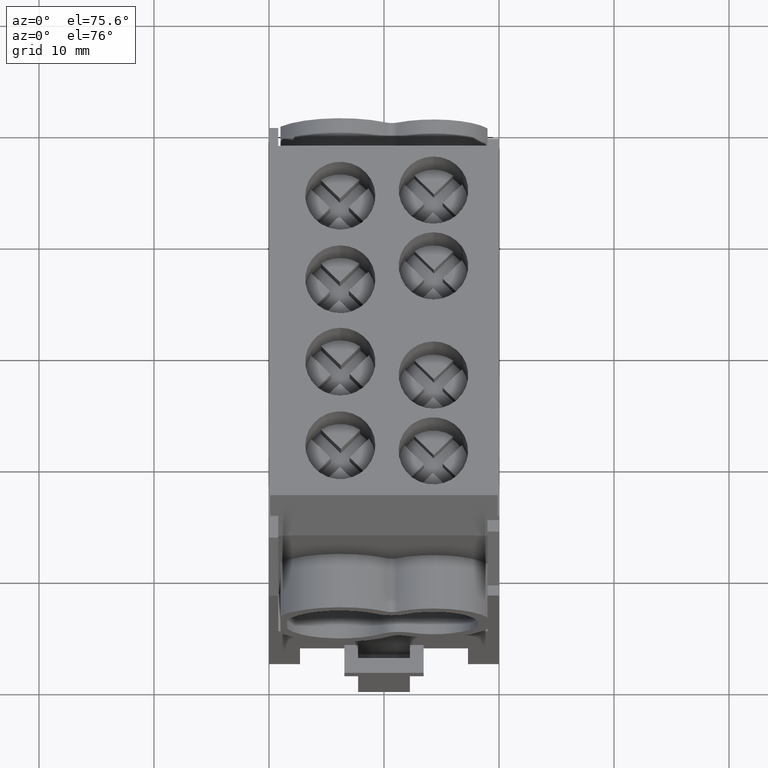
[diagram: clean part render]
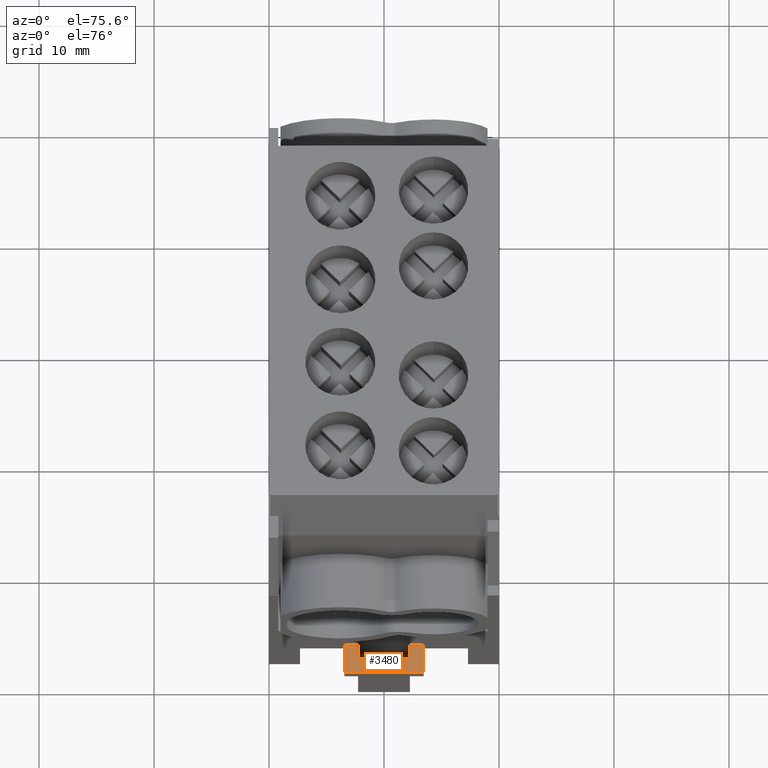
[diagram: same view with one face highlighted and labeled with its STEP entity id]
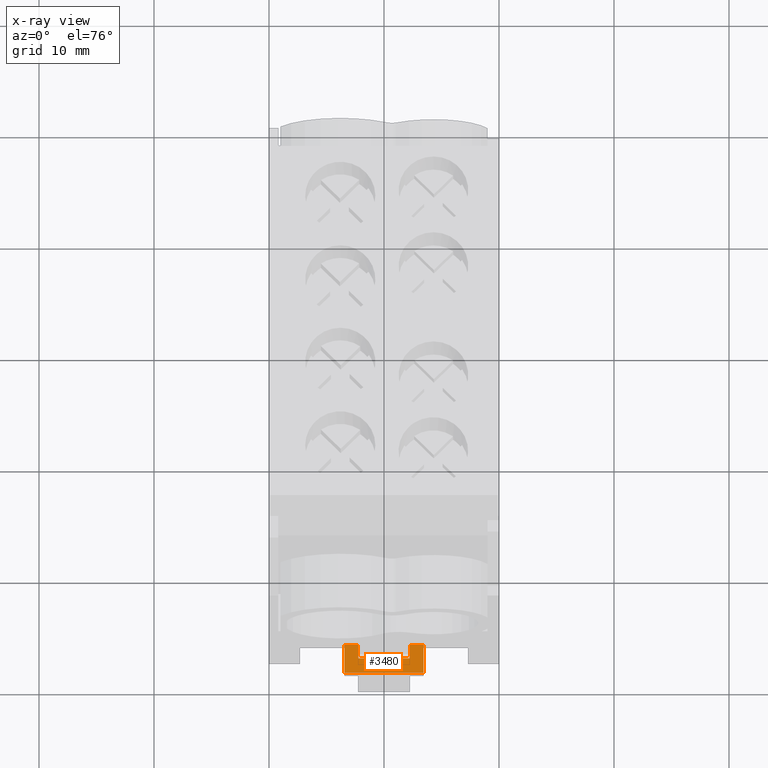
[diagram: x-ray of the same camera — body ghosted, the highlighted face saturated]
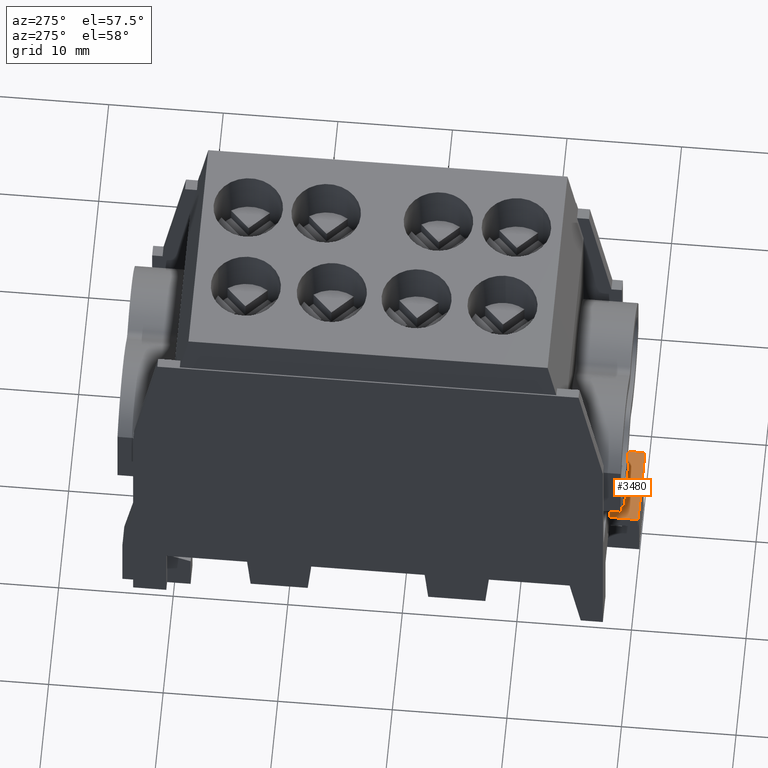
[diagram: same view with one face highlighted and labeled with its STEP entity id]
A machine part, auxiliary view. The second image highlights one B-rep face of the part: STEP entity #3480.
The next image is the same camera in x-ray: the body ghosted, the highlighted face saturated — about 0% of this face is hidden behind the body in this view.
A second angle (auxiliary view) of the same face is appended — the face is thin or edge-on in the first view.
In plain terms, the highlighted planar face has unit normal (0, 0, -1).
Its self-contained STEP definition (entity closure, byte-faithful):
#680=CARTESIAN_POINT('',(1.84999999999999,-20.5,-34.545359338705));
#690=VERTEX_POINT('',#680);
#720=CARTESIAN_POINT('',(-1.60000000000001,-20.5,-34.545359338705));
#730=DIRECTION('',(1.,-4.62223186652937E-32,5.55111512312577E-17));
#740=VECTOR('',#730,1.);
#750=LINE('',#720,#740);
#760=CARTESIAN_POINT('',(0.649999999999993,-20.5,-34.545359338705));
#770=VERTEX_POINT('',#760);
#780=EDGE_CURVE('',#770,#690,#750,.T.);
#1160=CARTESIAN_POINT('',(-3.85000000000001,-20.5,-34.545359338705));
#1170=VERTEX_POINT('',#1160);
#1200=CARTESIAN_POINT('',(-5.05000000000001,-20.5,-34.545359338705));
#1210=VERTEX_POINT('',#1200);
#1220=EDGE_CURVE('',#1210,#1170,#750,.T.);
#2950=CARTESIAN_POINT('',(-3.85000000000002,-21.5,-34.545359338705));
#2960=DIRECTION('',(5.55111512312577E-17,5.80952514931361E-16,-1.));
#2970=DIRECTION('',(-1.,2.77555756156289E-16,-5.55111512312575E-17));
#2980=AXIS2_PLACEMENT_3D('',#2950,#2960,#2970);
#2990=PLANE('',#2980);
#3000=CARTESIAN_POINT('',(-3.85000000000001,0.,-34.545359338705));
#3010=DIRECTION('',(-2.39272203583062E-20,1.,5.80952514931361E-16));
#3020=VECTOR('',#3010,1.);
#3030=LINE('',#3000,#3020);
#3040=CARTESIAN_POINT('',(-3.85000000000001,-21.7,-34.545359338705));
#3050=VERTEX_POINT('',#3040);
#3060=EDGE_CURVE('',#3050,#1170,#3030,.T.);
#3070=ORIENTED_EDGE('',*,*,#3060,.T.);
#3080=CARTESIAN_POINT('',(-1.60000000000001,-21.7,-34.545359338705));
#3090=DIRECTION('',(1.,-4.62592926927166E-18,5.55111512312577E-17));
#3100=VECTOR('',#3090,1.);
#3110=LINE('',#3080,#3100);
#3120=CARTESIAN_POINT('',(0.649999999999993,-21.7,-34.545359338705));
#3130=VERTEX_POINT('',#3120);
#3140=EDGE_CURVE('',#3050,#3130,#3110,.T.);
#3150=ORIENTED_EDGE('',*,*,#3140,.F.);
#3160=CARTESIAN_POINT('',(0.649999999999993,0.,-34.545359338705));
#3170=DIRECTION('',(2.39272203583062E-20,-1.,-5.80952514931361E-16));
#3180=VECTOR('',#3170,1.);
#3190=LINE('',#3160,#3180);
#3200=EDGE_CURVE('',#770,#3130,#3190,.T.);
#3210=ORIENTED_EDGE('',*,*,#3200,.T.);
#3220=ORIENTED_EDGE('',*,*,#780,.F.);
#3230=CARTESIAN_POINT('',(1.84999999999999,1.04809500540833E-14,
-34.545359338705));
#3240=DIRECTION('',(-1.7347234759768E-16,1.,5.80952514931361E-16));
#3250=VECTOR('',#3240,1.);
#3260=LINE('',#3230,#3250);
#3270=CARTESIAN_POINT('',(1.84999999999999,-23.,-34.545359338705));
#3280=VERTEX_POINT('',#3270);
#3290=EDGE_CURVE('',#3280,#690,#3260,.T.);
#3300=ORIENTED_EDGE('',*,*,#3290,.T.);
#3310=CARTESIAN_POINT('',(-1.60000000000001,-23.,-34.545359338705));
#3320=DIRECTION('',(1.,-4.93038065763132E-32,5.55111512312577E-17));
#3330=VECTOR('',#3320,1.);
#3340=LINE('',#3310,#3330);
#3350=CARTESIAN_POINT('',(-5.05000000000001,-23.,-34.545359338705));
#3360=VERTEX_POINT('',#3350);
#3370=EDGE_CURVE('',#3360,#3280,#3340,.T.);
#3380=ORIENTED_EDGE('',*,*,#3370,.T.);
#3390=CARTESIAN_POINT('',(-5.05,1.04809500540833E-14,-34.545359338705));
#3400=DIRECTION('',(-1.7347234759768E-16,-1.,-5.80952514931361E-16));
#3410=VECTOR('',#3400,1.);
#3420=LINE('',#3390,#3410);
#3430=EDGE_CURVE('',#1210,#3360,#3420,.T.);
#3440=ORIENTED_EDGE('',*,*,#3430,.T.);
#3450=ORIENTED_EDGE('',*,*,#1220,.F.);
#3460=EDGE_LOOP('',(#3450,#3440,#3380,#3300,#3220,#3210,#3150,#3070));
#3470=FACE_OUTER_BOUND('',#3460,.T.);
#3480=ADVANCED_FACE('',(#3470),#2990,.F.);